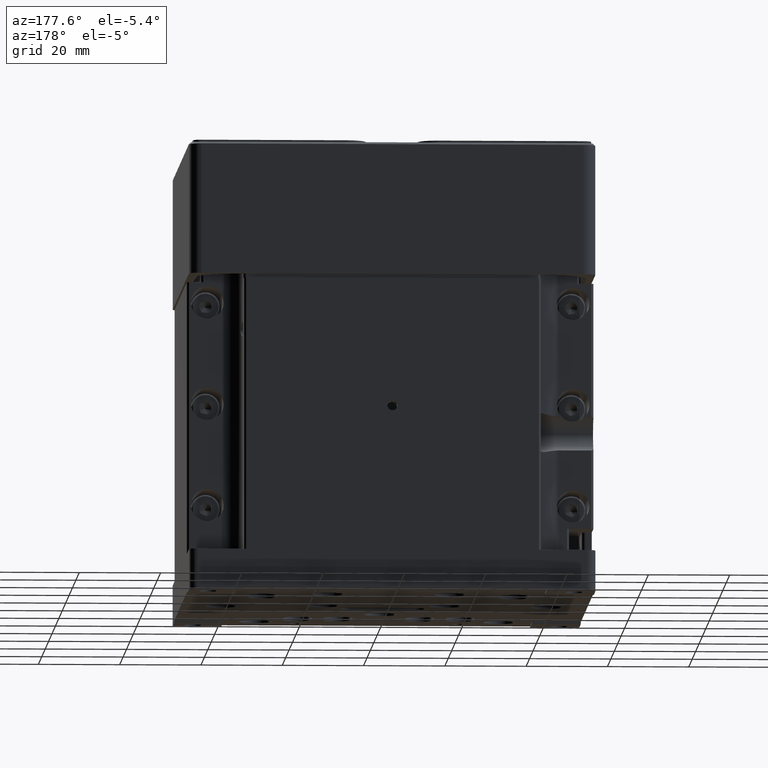
[diagram: clean part render]
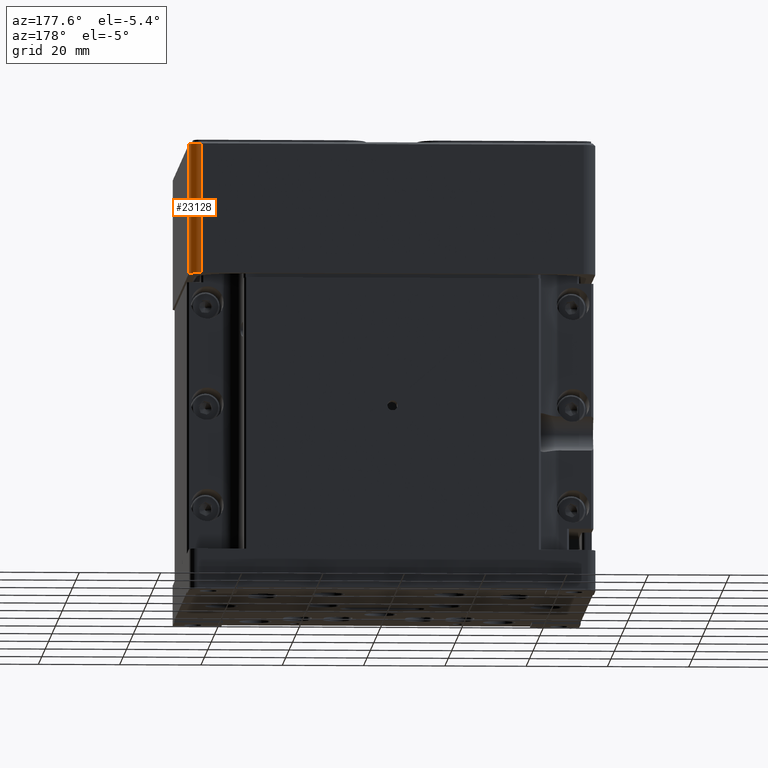
[diagram: same view with one face highlighted and labeled with its STEP entity id]
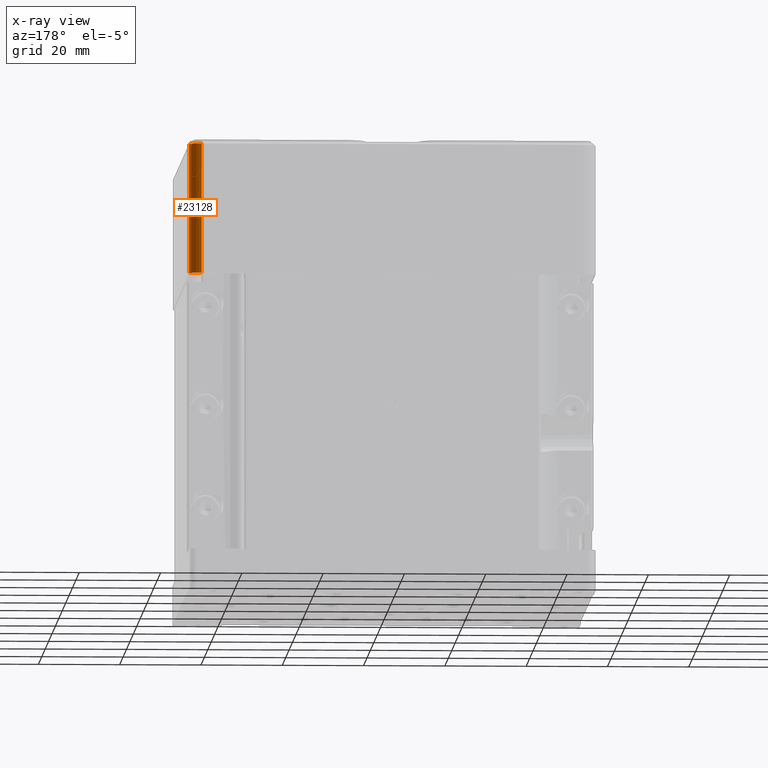
[diagram: x-ray of the same camera — body ghosted, the highlighted face saturated]
A machine part, auxiliary view. The second image highlights one B-rep face of the part: STEP entity #23128.
The next image is the same camera in x-ray: the body ghosted, the highlighted face saturated — about 0% of this face is hidden behind the body in this view.
In plain terms, the highlighted cylindrical surface (edge-blend (fillet) strip) has radius 3 mm, axis along (0, 0, -1).
Its self-contained STEP definition (entity closure, byte-faithful):
#787 = CARTESIAN_POINT ( 'NONE',  ( 47.00000000000001421, 47.00000000000000000, 99.99999999998865974 ) ) ;
#1772 = EDGE_CURVE ( 'NONE', #24621, #6268, #4856, .T. ) ;
#2746 = CARTESIAN_POINT ( 'NONE',  ( 47.00000000000001421, 50.00000000000000000, 68.09999999999999432 ) ) ;
#4856 = LINE ( 'NONE', #45712, #23331 ) ;
#4952 = DIRECTION ( 'NONE',  ( 0.000000000000000000, 1.000000000000000000, 0.000000000000000000 ) ) ;
#6268 = VERTEX_POINT ( 'NONE', #25872 ) ;
#7704 = CIRCLE ( 'NONE', #20193, 3.000000000000002665 ) ;
#8991 = AXIS2_PLACEMENT_3D ( 'NONE', #41670, #22604, #29915 ) ;
#10915 = DIRECTION ( 'NONE',  ( 3.673419846319648462E-39, 7.001238251335375373E-39, -1.000000000000000000 ) ) ;
#11939 = DIRECTION ( 'NONE',  ( -3.673419846319648462E-39, -7.001238251335375373E-39, 1.000000000000000000 ) ) ;
#13880 = CARTESIAN_POINT ( 'NONE',  ( 49.99999999999823075, 47.00000000000000000, 99.99999999999326405 ) ) ;
#13980 = VERTEX_POINT ( 'NONE', #31622 ) ;
#15476 = DIRECTION ( 'NONE',  ( 0.000000000000000000, 1.000000000000000000, 0.000000000000000000 ) ) ;
#19868 = DIRECTION ( 'NONE',  ( 3.673419846319648462E-39, 7.001238251335375373E-39, -1.000000000000000000 ) ) ;
#20133 = FACE_OUTER_BOUND ( 'NONE', #33189, .T. ) ;
#20193 = AXIS2_PLACEMENT_3D ( 'NONE', #787, #10915, #15476 ) ;
#22604 = DIRECTION ( 'NONE',  ( 3.673419846319648462E-39, 7.001238251335375373E-39, -1.000000000000000000 ) ) ;
#23128 = ADVANCED_FACE ( 'NONE', ( #20133 ), #23803, .T. ) ;
#23331 = VECTOR ( 'NONE', #11939, 1000.000000000000000 ) ;
#23803 = CYLINDRICAL_SURFACE ( 'NONE', #33809, 3.000000000000002665 ) ;
#24621 = VERTEX_POINT ( 'NONE', #2746 ) ;
#25872 = CARTESIAN_POINT ( 'NONE',  ( 47.00000000000001421, 50.00000000000284928, 99.99999999998296119 ) ) ;
#26055 = DIRECTION ( 'NONE',  ( 3.673419846319648462E-39, -0.000000000000000000, -1.000000000000000000 ) ) ;
#26118 = ORIENTED_EDGE ( 'NONE', *, *, #29083, .T. ) ;
#29083 = EDGE_CURVE ( 'NONE', #6268, #40275, #7704, .T. ) ;
#29915 = DIRECTION ( 'NONE',  ( 0.000000000000000000, 1.000000000000000000, 0.000000000000000000 ) ) ;
#30719 = ORIENTED_EDGE ( 'NONE', *, *, #43011, .T. ) ;
#31622 = CARTESIAN_POINT ( 'NONE',  ( 50.00000000000001421, 47.00000000000000000, 68.09999999999999432 ) ) ;
#31660 = CIRCLE ( 'NONE', #8991, 3.000000000000002665 ) ;
#32937 = CARTESIAN_POINT ( 'NONE',  ( 50.00000000000001421, 47.00000000000000000, 100.5000000000000000 ) ) ;
#33189 = EDGE_LOOP ( 'NONE', ( #30719, #34313, #43778, #26118 ) ) ;
#33809 = AXIS2_PLACEMENT_3D ( 'NONE', #38468, #19868, #4952 ) ;
#34110 = EDGE_CURVE ( 'NONE', #24621, #13980, #31660, .T. ) ;
#34313 = ORIENTED_EDGE ( 'NONE', *, *, #34110, .F. ) ;
#38468 = CARTESIAN_POINT ( 'NONE',  ( 47.00000000000001421, 47.00000000000000000, 100.5000000000000000 ) ) ;
#40275 = VERTEX_POINT ( 'NONE', #13880 ) ;
#41670 = CARTESIAN_POINT ( 'NONE',  ( 47.00000000000001421, 47.00000000000000000, 68.09999999999999432 ) ) ;
#42879 = VECTOR ( 'NONE', #26055, 1000.000000000000000 ) ;
#43011 = EDGE_CURVE ( 'NONE', #40275, #13980, #44666, .T. ) ;
#43778 = ORIENTED_EDGE ( 'NONE', *, *, #1772, .T. ) ;
#44666 = LINE ( 'NONE', #32937, #42879 ) ;
#45712 = CARTESIAN_POINT ( 'NONE',  ( 47.00000000000001421, 50.00000000000000000, 100.5000000000000000 ) ) ;